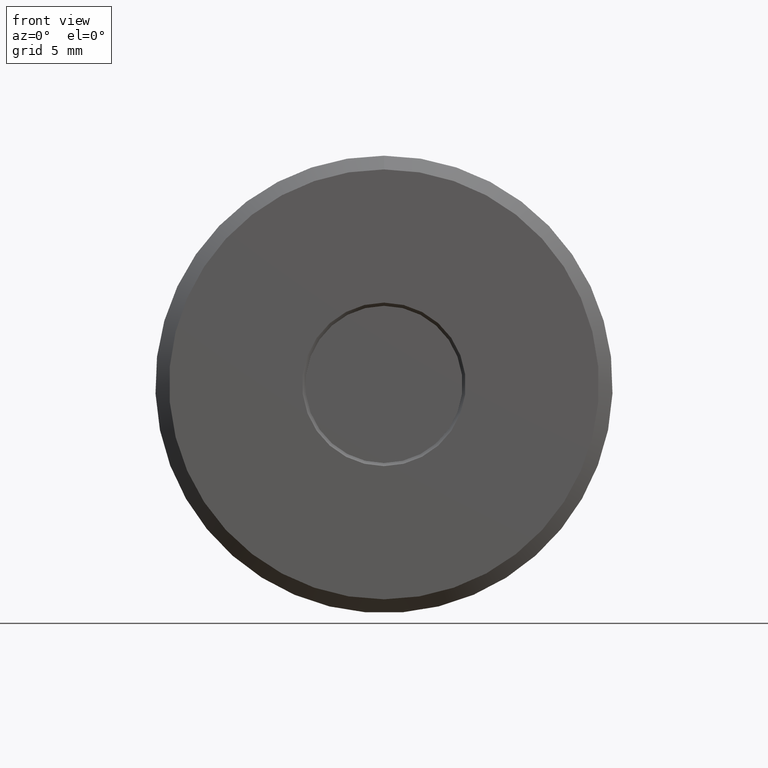
[diagram: clean part render]
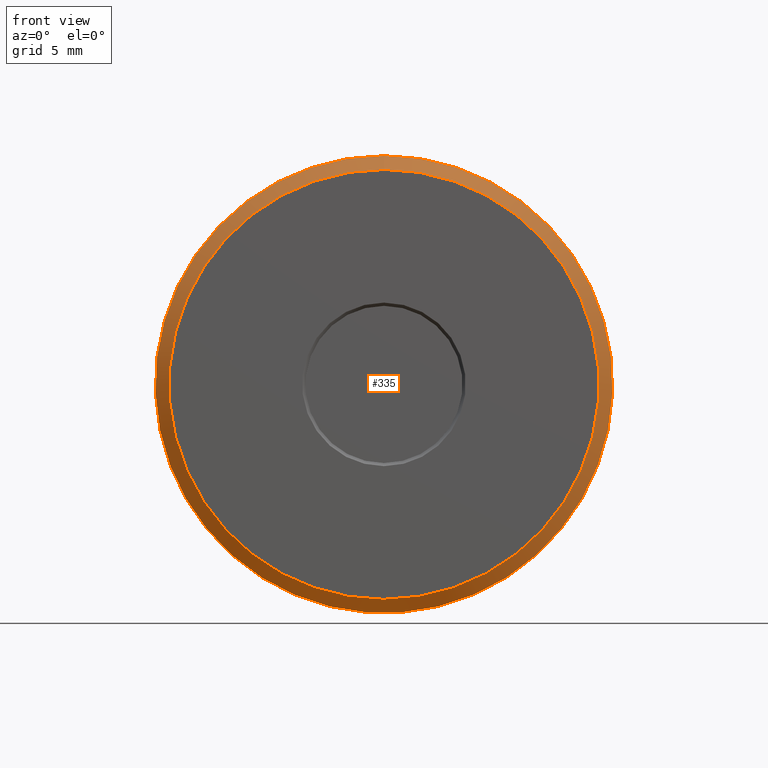
[diagram: same view with one face highlighted and labeled with its STEP entity id]
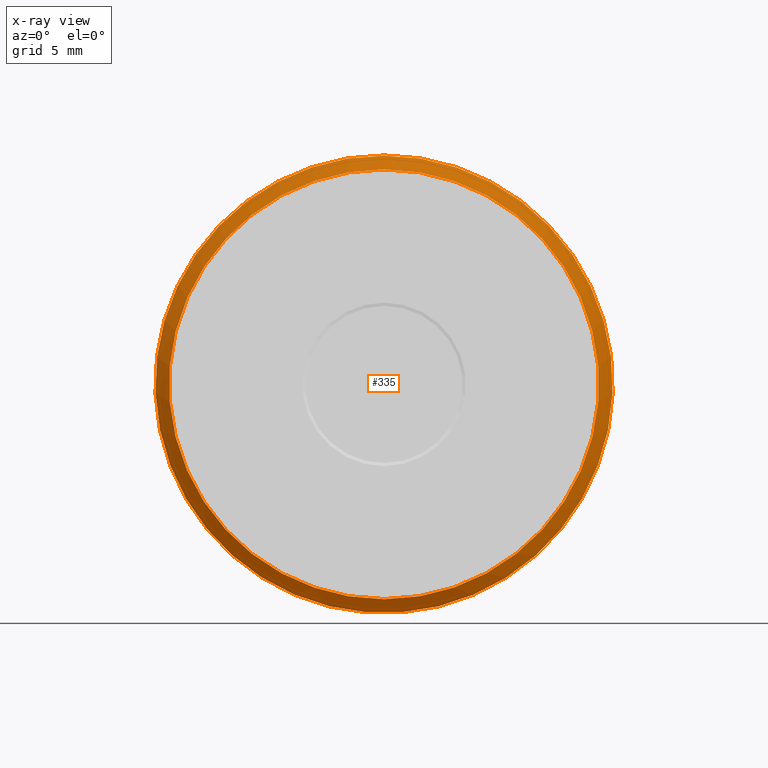
[diagram: x-ray of the same camera — body ghosted, the highlighted face saturated]
A machine part, front view. The second image highlights one B-rep face of the part: STEP entity #335.
The next image is the same camera in x-ray: the body ghosted, the highlighted face saturated — about 0% of this face is hidden behind the body in this view.
In plain terms, the highlighted conical surface has half-angle 45 deg.
Its self-contained STEP definition (entity closure, byte-faithful):
#101 = CIRCLE ( 'NONE', #282, 0.4699999999999999700 ) ;
#136 = AXIS2_PLACEMENT_3D ( 'NONE', #191, #189, #181 ) ;
#144 = DIRECTION ( 'NONE',  ( -0.0000000000000000000, 1.000000000000000000, -0.0000000000000000000 ) ) ;
#172 = EDGE_LOOP ( 'NONE', ( #263 ) ) ;
#181 = DIRECTION ( 'NONE',  ( 0.0000000000000000000, 0.0000000000000000000, 1.000000000000000000 ) ) ;
#189 = DIRECTION ( 'NONE',  ( -0.0000000000000000000, 1.000000000000000000, -0.0000000000000000000 ) ) ;
#191 = CARTESIAN_POINT ( 'NONE',  ( 0.0000000000000000000, 0.03000000000000017600, 0.0000000000000000000 ) ) ;
#261 = CARTESIAN_POINT ( 'NONE',  ( 0.0000000000000000000, -1.644262389226299400E-016, 0.4699999999999999700 ) ) ;
#263 = ORIENTED_EDGE ( 'NONE', *, *, #486, .T. ) ;
#267 = CARTESIAN_POINT ( 'NONE',  ( 0.0000000000000000000, 0.03000000000000017600, 0.5000000000000000000 ) ) ;
#281 = FACE_BOUND ( 'NONE', #172, .T. ) ;
#282 = AXIS2_PLACEMENT_3D ( 'NONE', #379, #370, #368 ) ;
#310 = ORIENTED_EDGE ( 'NONE', *, *, #456, .F. ) ;
#335 = ADVANCED_FACE ( 'NONE', ( #281, #517 ), #481, .T. ) ;
#348 = VERTEX_POINT ( 'NONE', #261 ) ;
#368 = DIRECTION ( 'NONE',  ( 0.0000000000000000000, 0.0000000000000000000, 1.000000000000000000 ) ) ;
#370 = DIRECTION ( 'NONE',  ( -0.0000000000000000000, 1.000000000000000000, -0.0000000000000000000 ) ) ;
#379 = CARTESIAN_POINT ( 'NONE',  ( 0.0000000000000000000, -1.644262389226299400E-016, 0.0000000000000000000 ) ) ;
#409 = EDGE_LOOP ( 'NONE', ( #310 ) ) ;
#410 = AXIS2_PLACEMENT_3D ( 'NONE', #509, #144, #495 ) ;
#456 = EDGE_CURVE ( 'NONE', #461, #461, #549, .T. ) ;
#461 = VERTEX_POINT ( 'NONE', #267 ) ;
#481 = CONICAL_SURFACE ( 'NONE', #410, 0.5000000000000000000, 0.7853981633974429500 ) ;
#486 = EDGE_CURVE ( 'NONE', #348, #348, #101, .T. ) ;
#495 = DIRECTION ( 'NONE',  ( 0.0000000000000000000, 0.0000000000000000000, 1.000000000000000000 ) ) ;
#509 = CARTESIAN_POINT ( 'NONE',  ( 0.0000000000000000000, 0.03000000000000017600, 0.0000000000000000000 ) ) ;
#517 = FACE_OUTER_BOUND ( 'NONE', #409, .T. ) ;
#549 = CIRCLE ( 'NONE', #136, 0.5000000000000000000 ) ;